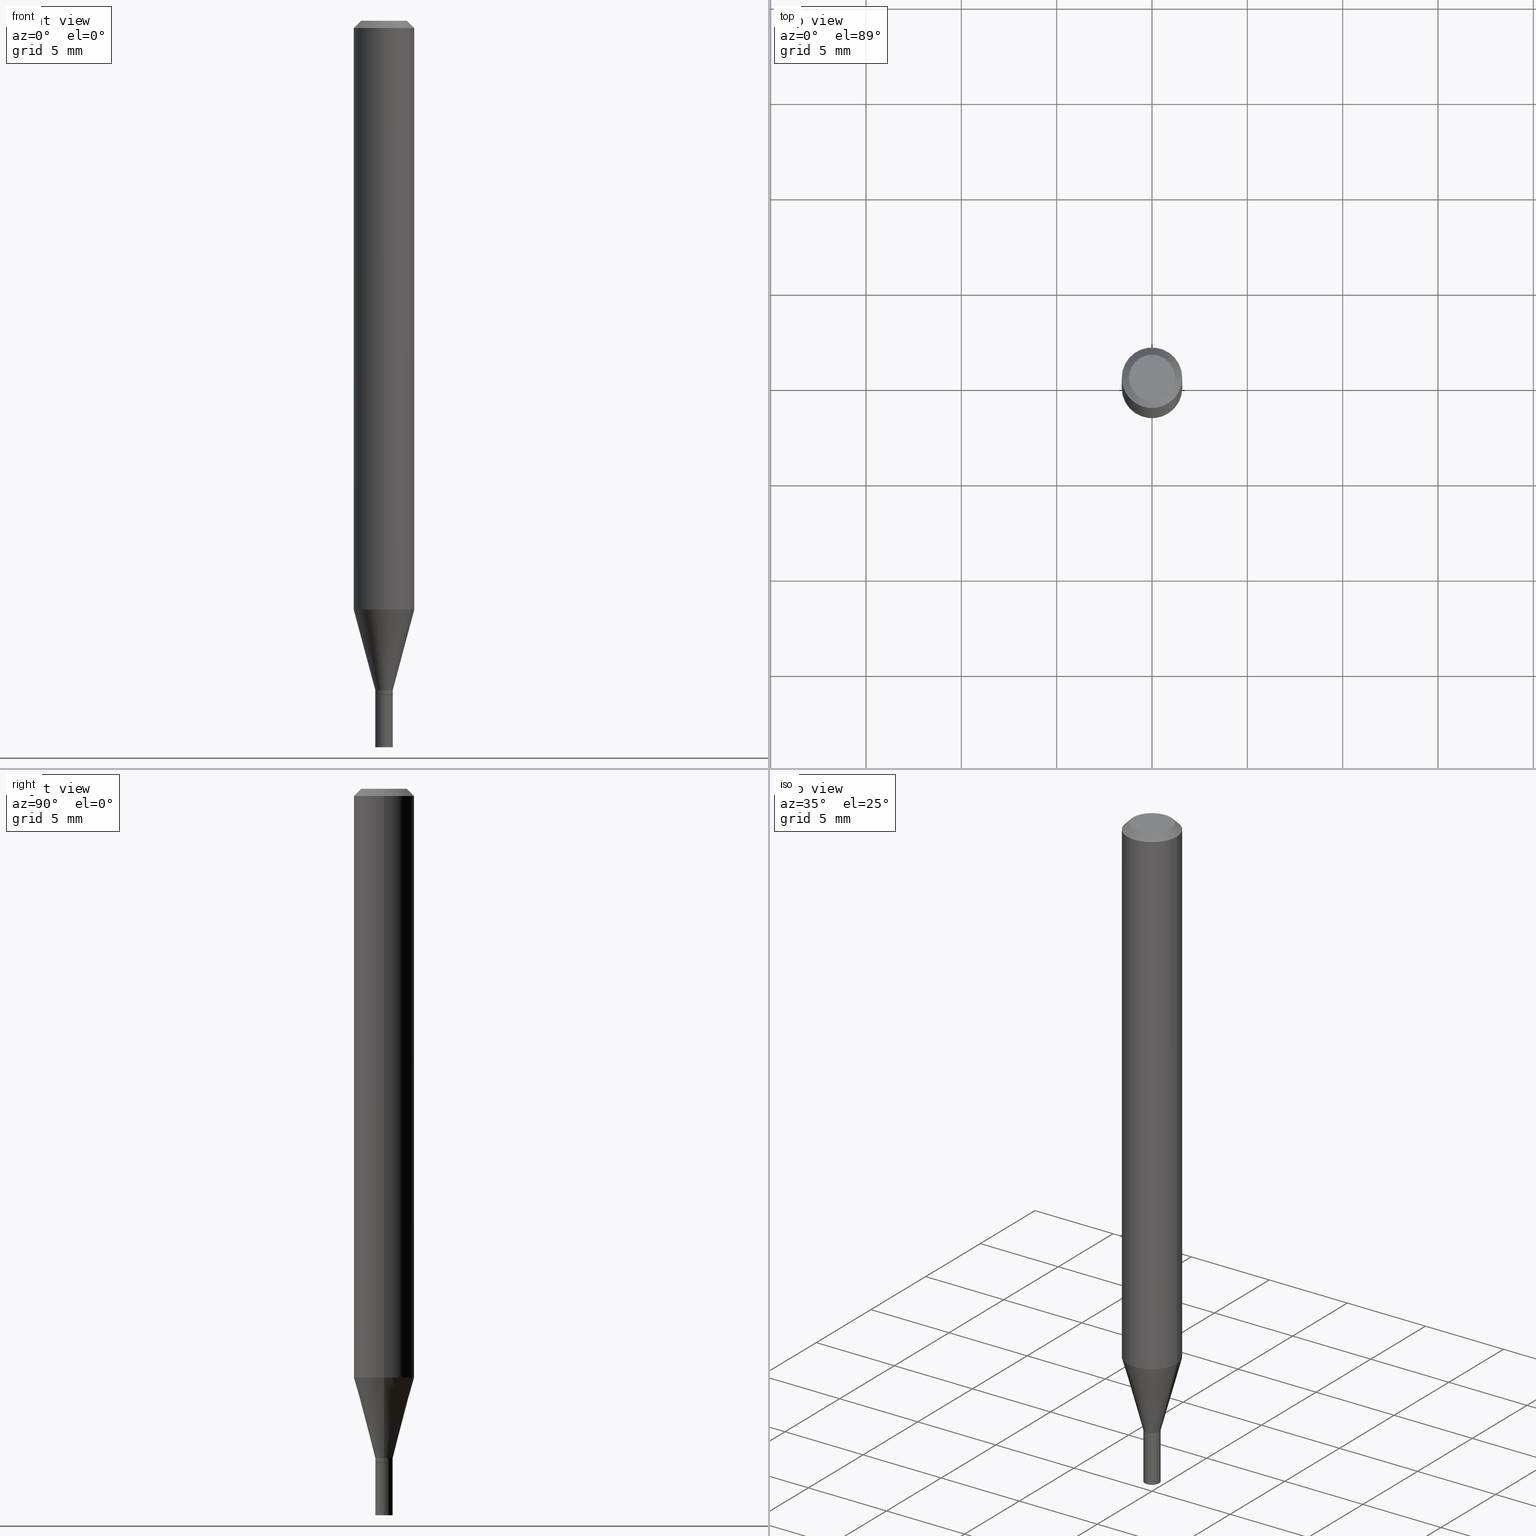
[diagram: canonical four-view strip — front | top / right | iso, engineering-drawing reading convention]
A machine part, canonical four-view strip (front | top / right | iso — engineering-drawing reading convention). The complete STEP part file that produces these views, byte-faithful:
ISO-10303-21;
HEADER;
FILE_DESCRIPTION (( 'STEP AP203' ),
    '1' );
FILE_NAME ('02343.STEP',
    '2024-03-18T20:10:57',
    ( '' ),
    ( '' ),
    'SwSTEP 2.0',
    'SolidWorks 2023',
    '' );
FILE_SCHEMA (( 'CONFIG_CONTROL_DESIGN' ));
ENDSEC;

DATA;
#1 = VECTOR ( 'NONE', #183, 39.37007874015748143 ) ;
#2 = CC_DESIGN_DATE_AND_TIME_ASSIGNMENT ( #293, #216, ( #354 ) ) ;
#3 = CIRCLE ( 'NONE', #403, 0.01799999999999992231 ) ;
#4 = APPLICATION_PROTOCOL_DEFINITION ( 'international standard', 'config_control_design', 1994, #36 ) ;
#5 = CARTESIAN_POINT ( 'NONE',  ( 1.278896122067429216E-44, -1.825924719719875646E-30, -5.229656247639779395E-16 ) ) ;
#6 = PERSON_AND_ORGANIZATION_ROLE ( 'classification_officer' ) ;
#7 = CARTESIAN_POINT ( 'NONE',  ( -0.01799999999999999864, -4.920784323530369756E-15, -1.392000000000000126 ) ) ;
#8 = PRODUCT ( '02343', '02343', '', ( #319 ) ) ;
#9 = CARTESIAN_POINT ( 'NONE',  ( 3.316907271900976096E-16, 0.04749999999999999362, -4.273281759770383169E-16 ) ) ;
#10 = FACE_OUTER_BOUND ( 'NONE', #165, .T. ) ;
#11 = CARTESIAN_POINT ( 'NONE',  ( 3.402869843806617422E-29, -4.858396283000238492E-15, -1.391500000000000181 ) ) ;
#12 = EDGE_CURVE ( 'NONE', #454, #226, #213, .T. ) ;
#13 = DIRECTION ( 'NONE',  ( 1.000000000000000000, -6.982962677686265922E-15, 4.876176775795935793E-29 ) ) ;
#14 = CIRCLE ( 'NONE', #212, 0.01749999999999999820 ) ;
#15 = CARTESIAN_POINT ( 'NONE',  ( 0.01799999999999991884, -1.256933281983522259E-16, 8.777118196432644280E-31 ) ) ;
#16 = AXIS2_PLACEMENT_3D ( 'NONE', #5, #244, #358 ) ;
#17 = DIRECTION ( 'NONE',  ( -2.445468806185136877E-29, 3.491481338843145188E-15, 1.000000000000000000 ) ) ;
#18 = EDGE_LOOP ( 'NONE', ( #235, #20, #67, #312 ) ) ;
#19 = CARTESIAN_POINT ( 'NONE',  ( -0.01799999999999991884, 1.278976924368174568E-16, -8.854083162458790652E-31 ) ) ;
#20 = ORIENTED_EDGE ( 'NONE', *, *, #190, .T. ) ;
#21 = DIRECTION ( 'NONE',  ( -2.445468806185136597E-29, 3.491481338843145583E-15, 1.000000000000000000 ) ) ;
#22 = ORIENTED_EDGE ( 'NONE', *, *, #378, .F. ) ;
#23 = VECTOR ( 'NONE', #17, 39.37007874015748143 ) ;
#24 = CARTESIAN_POINT ( 'NONE',  ( 0.000000000000000000, 0.000000000000000000, 0.000000000000000000 ) ) ;
#25 = VERTEX_POINT ( 'NONE', #104 ) ;
#26 = EDGE_CURVE ( 'NONE', #92, #158, #175, .T. ) ;
#27 = CALENDAR_DATE ( 2024, 18, 3 ) ;
#28 = EDGE_LOOP ( 'NONE', ( #282, #248 ) ) ;
#29 = DATE_TIME_ROLE ( 'creation_date' ) ;
#30 = CIRCLE ( 'NONE', #263, 0.01799999999999992231 ) ;
#31 = ORIENTED_EDGE ( 'NONE', *, *, #12, .T. ) ;
#32 = AXIS2_PLACEMENT_3D ( 'NONE', #462, #68, #140 ) ;
#33 = DIRECTION ( 'NONE',  ( -2.445468806185136877E-29, 3.491481338843145188E-15, 1.000000000000000000 ) ) ;
#34 = ADVANCED_FACE ( 'NONE', ( #426 ), #340, .T. ) ;
#35 = VERTEX_POINT ( 'NONE', #141 ) ;
#36 = APPLICATION_CONTEXT ( 'configuration controlled 3d designs of mechanical parts and assemblies' ) ;
#37 = FACE_OUTER_BOUND ( 'NONE', #250, .T. ) ;
#38 = FACE_OUTER_BOUND ( 'NONE', #308, .T. ) ;
#39 = CC_DESIGN_PERSON_AND_ORGANIZATION_ASSIGNMENT ( #257, #367, ( #236 ) ) ;
#40 = PERSON_AND_ORGANIZATION_ROLE ( 'design_owner' ) ;
#41 = DIRECTION ( 'NONE',  ( -2.445468806185136597E-29, 3.491481338843145583E-15, 1.000000000000000000 ) ) ;
#42 = AXIS2_PLACEMENT_3D ( 'NONE', #455, #273, #309 ) ;
#43 = ADVANCED_FACE ( 'NONE', ( #242 ), #424, .T. ) ;
#44 = AXIS2_PLACEMENT_3D ( 'NONE', #224, #265, #48 ) ;
#45 = ORIENTED_EDGE ( 'NONE', *, *, #173, .T. ) ;
#46 = DIRECTION ( 'NONE',  ( 2.438088387897960049E-29, -3.491481338843145188E-15, -1.000000000000000000 ) ) ;
#47 = PERSON_AND_ORGANIZATION ( #375, #99 ) ;
#48 = DIRECTION ( 'NONE',  ( 1.000000000000000000, -6.982962677686250144E-15, 0.000000000000000000 ) ) ;
#49 = PERSON_AND_ORGANIZATION_ROLE ( 'design_supplier' ) ;
#50 = CARTESIAN_POINT ( 'NONE',  ( 3.576687321579069994E-29, -5.368277968210015545E-15, -1.500000000000000222 ) ) ;
#51 = EDGE_CURVE ( 'NONE', #197, #454, #264, .T. ) ;
#52 = DIRECTION ( 'NONE',  ( -2.445468806185136877E-29, 3.491481338843145188E-15, 1.000000000000000000 ) ) ;
#53 = CC_DESIGN_DATE_AND_TIME_ASSIGNMENT ( #164, #29, ( #255 ) ) ;
#54 = CARTESIAN_POINT ( 'NONE',  ( 3.379637890147859239E-29, -4.825227210281227557E-15, -1.382000000000000117 ) ) ;
#55 = CIRCLE ( 'NONE', #317, 0.01799999999999999864 ) ;
#56 = DIRECTION ( 'NONE',  ( 0.7071067811865642261, -2.468850131082431399E-15, 0.7071067811865309194 ) ) ;
#57 = APPROVAL ( #428, 'UNSPECIFIED' ) ;
#58 = DIRECTION ( 'NONE',  ( 1.000000000000000000, -6.982962677686279332E-15, 0.000000000000000000 ) ) ;
#59 = CARTESIAN_POINT ( 'NONE',  ( -0.06250000000000001388, -3.801285834545430586E-15, -1.215923739063185183 ) ) ;
#60 = VERTEX_POINT ( 'NONE', #146 ) ;
#61 = CIRCLE ( 'NONE', #97, 0.01799999999999999864 ) ;
#62 = DIRECTION ( 'NONE',  ( -2.445468806185136597E-29, 3.491481338843145583E-15, 1.000000000000000000 ) ) ;
#63 = APPROVAL_PERSON_ORGANIZATION ( #288, #389, #109 ) ;
#64 = ORIENTED_EDGE ( 'NONE', *, *, #223, .T. ) ;
#65 = VECTOR ( 'NONE', #52, 39.37007874015748143 ) ;
#66 = DATE_AND_TIME ( #385, #228 ) ;
#67 = ORIENTED_EDGE ( 'NONE', *, *, #372, .T. ) ;
#68 = DIRECTION ( 'NONE',  ( -2.445468806185136597E-29, 3.491481338843145583E-15, 1.000000000000000000 ) ) ;
#69 = CARTESIAN_POINT ( 'NONE',  ( 3.668203209277705088E-31, -5.237222008264718399E-17, -0.01499999999999999944 ) ) ;
#70 = AXIS2_PLACEMENT_3D ( 'NONE', #266, #410, #315 ) ;
#71 = ORIENTED_EDGE ( 'NONE', *, *, #351, .T. ) ;
#72 = ORIENTED_EDGE ( 'NONE', *, *, #173, .F. ) ;
#73 = DIRECTION ( 'NONE',  ( 1.000000000000000000, -6.982962677686270655E-15, 0.000000000000000000 ) ) ;
#74 = ORIENTED_EDGE ( 'NONE', *, *, #420, .T. ) ;
#75 = ORIENTED_EDGE ( 'NONE', *, *, #289, .F. ) ;
#76 = APPROVAL ( #296, 'UNSPECIFIED' ) ;
#77 = AXIS2_PLACEMENT_3D ( 'NONE', #465, #205, #243 ) ;
#78 = CLOSED_SHELL ( 'NONE', ( #215, #163, #387, #414 ) ) ;
#79 = DIRECTION ( 'NONE',  ( 1.000000000000000000, -6.982962677686255667E-15, 0.000000000000000000 ) ) ;
#80 = FACE_OUTER_BOUND ( 'NONE', #276, .T. ) ;
#81 = ADVANCED_FACE ( 'NONE', ( #38 ), #290, .T. ) ;
#82 = CARTESIAN_POINT ( 'NONE',  ( -0.01799999999999991884, -4.249307676194920787E-15, -1.382000000000000117 ) ) ;
#83 = AXIS2_PLACEMENT_3D ( 'NONE', #150, #295, #439 ) ;
#84 = EDGE_CURVE ( 'NONE', #342, #25, #121, .T. ) ;
#85 = DIRECTION ( 'NONE',  ( -1.000000000000000000, 6.982962677686266711E-15, 0.000000000000000000 ) ) ;
#86 = DIRECTION ( 'NONE',  ( 1.000000000000000000, -6.982962677686256455E-15, 0.000000000000000000 ) ) ;
#87 = MANIFOLD_SOLID_BREP ( 'Body-Move/Copy2[1]', #78 ) ;
#88 = CARTESIAN_POINT ( 'NONE',  ( 0.000000000000000000, 0.000000000000000000, 0.000000000000000000 ) ) ;
#89 = ORIENTED_EDGE ( 'NONE', *, *, #332, .F. ) ;
#90 =( GEOMETRIC_REPRESENTATION_CONTEXT ( 3 ) GLOBAL_UNCERTAINTY_ASSIGNED_CONTEXT ( ( #201 ) ) GLOBAL_UNIT_ASSIGNED_CONTEXT ( ( #283, #106, #174 ) ) REPRESENTATION_CONTEXT ( 'NONE', 'WORKASPACE' ) );
#91 = DIRECTION ( 'NONE',  ( 1.000000000000000000, -6.982962677686266711E-15, 0.000000000000000000 ) ) ;
#92 = VERTEX_POINT ( 'NONE', #297 ) ;
#93 = CARTESIAN_POINT ( 'NONE',  ( 3.404092578209710223E-29, -4.860142023669658418E-15, -1.392000000000000126 ) ) ;
#94 = ORIENTED_EDGE ( 'NONE', *, *, #370, .T. ) ;
#95 = CARTESIAN_POINT ( 'NONE',  ( -0.01799999999999991884, -4.697329517844410199E-15, -1.382000000000000117 ) ) ;
#96 = ORIENTED_EDGE ( 'NONE', *, *, #84, .F. ) ;
#97 = AXIS2_PLACEMENT_3D ( 'NONE', #115, #259, #400 ) ;
#98 = DIRECTION ( 'NONE',  ( 1.000000000000000000, -6.982962677686266711E-15, 4.876176775795935232E-29 ) ) ;
#99 = ORGANIZATION ( 'UNSPECIFIED', 'UNSPECIFIED', '' ) ;
#100 = ORIENTED_EDGE ( 'NONE', *, *, #437, .F. ) ;
#101 = AXIS2_PLACEMENT_3D ( 'NONE', #269, #126, #91 ) ;
#102 = CARTESIAN_POINT ( 'NONE',  ( 3.404092578209710223E-29, -4.860142023669658418E-15, -1.392000000000000126 ) ) ;
#103 = CARTESIAN_POINT ( 'NONE',  ( 2.973503574579014958E-29, -4.245375044395493202E-15, -1.215923739063185183 ) ) ;
#104 = CARTESIAN_POINT ( 'NONE',  ( 0.06250000000000001388, -4.681810211750884871E-15, -1.215923739063185183 ) ) ;
#105 = CC_DESIGN_PERSON_AND_ORGANIZATION_ASSIGNMENT ( #281, #40, ( #8 ) ) ;
#106 =( NAMED_UNIT ( * ) PLANE_ANGLE_UNIT ( ) SI_UNIT ( $, .RADIAN. ) );
#107 = ORIENTED_EDGE ( 'NONE', *, *, #129, .T. ) ;
#108 = ORIENTED_EDGE ( 'NONE', *, *, #409, .F. ) ;
#109 = APPROVAL_ROLE ( '' ) ;
#110 = EDGE_CURVE ( 'NONE', #60, #25, #292, .T. ) ;
#111 = DIRECTION ( 'NONE',  ( -2.445468806185136597E-29, 3.491481338843145583E-15, 1.000000000000000000 ) ) ;
#112 = DATE_AND_TIME ( #444, #127 ) ;
#113 = LINE ( 'NONE', #408, #304 ) ;
#114 = VECTOR ( 'NONE', #56, 39.37007874015748143 ) ;
#115 = CARTESIAN_POINT ( 'NONE',  ( 3.668203209277704895E-29, -5.237222008264718177E-15, -1.500000000000000222 ) ) ;
#116 = ADVANCED_FACE ( 'NONE', ( #80 ), #237, .T. ) ;
#117 = PERSON_AND_ORGANIZATION ( #375, #99 ) ;
#118 = CARTESIAN_POINT ( 'NONE',  ( -0.01799999999999999864, 1.278976924368180238E-16, -8.854083162458829188E-31 ) ) ;
#119 = CARTESIAN_POINT ( 'NONE',  ( 0.04749999999999999362, -4.035134999187587991E-16, -5.229656247639753758E-16 ) ) ;
#120 = CIRCLE ( 'NONE', #361, 0.04749999999999999362 ) ;
#121 = CIRCLE ( 'NONE', #166, 0.06250000000000000000 ) ;
#122 = EDGE_CURVE ( 'NONE', #342, #226, #335, .T. ) ;
#123 = DIRECTION ( 'NONE',  ( -2.445468806185136597E-29, 3.491481338843145583E-15, 1.000000000000000000 ) ) ;
#124 = PLANE ( 'NONE',  #70 ) ;
#125 = VERTEX_POINT ( 'NONE', #82 ) ;
#126 = DIRECTION ( 'NONE',  ( -2.445468806185136597E-29, 3.491481338843145583E-15, 1.000000000000000000 ) ) ;
#127 = LOCAL_TIME ( 16, 10, 57.00000000000000000, #252 ) ;
#128 = CARTESIAN_POINT ( 'NONE',  ( 0.06250000000000000000, -4.888073874380388472E-16, -0.01499999999999999944 ) ) ;
#129 = EDGE_CURVE ( 'NONE', #413, #322, #421, .T. ) ;
#130 = DIRECTION ( 'NONE',  ( -2.445468806185136877E-29, 3.491481338843145188E-15, 1.000000000000000000 ) ) ;
#131 = ORIENTED_EDGE ( 'NONE', *, *, #346, .T. ) ;
#132 = PLANE ( 'NONE',  #145 ) ;
#133 = ORIENTED_EDGE ( 'NONE', *, *, #271, .T. ) ;
#134 = AXIS2_PLACEMENT_3D ( 'NONE', #50, #178, #13 ) ;
#135 = CARTESIAN_POINT ( 'NONE',  ( 2.973503574579014958E-29, -4.245375044395493202E-15, -1.215923739063185183 ) ) ;
#136 = EDGE_CURVE ( 'NONE', #322, #413, #14, .T. ) ;
#137 = DIRECTION ( 'NONE',  ( 1.000000000000000000, -6.982962677686279332E-15, 0.000000000000000000 ) ) ;
#138 = PERSON_AND_ORGANIZATION ( #375, #99 ) ;
#139 = ORIENTED_EDGE ( 'NONE', *, *, #136, .F. ) ;
#140 = DIRECTION ( 'NONE',  ( 1.000000000000000000, -6.982962677686266711E-15, 4.876176775795935793E-29 ) ) ;
#141 = CARTESIAN_POINT ( 'NONE',  ( 0.01799999999999992231, -4.984089611198589115E-15, -1.391500000000000181 ) ) ;
#142 = DIRECTION ( 'NONE',  ( -2.445468806185136597E-29, 3.491481338843145583E-15, 1.000000000000000000 ) ) ;
#143 = AXIS2_PLACEMENT_3D ( 'NONE', #434, #111, #396 ) ;
#144 = ORIENTED_EDGE ( 'NONE', *, *, #437, .T. ) ;
#145 = AXIS2_PLACEMENT_3D ( 'NONE', #93, #344, #272 ) ;
#146 = CARTESIAN_POINT ( 'NONE',  ( 0.01799999999999991884, -4.950920538479579759E-15, -1.382000000000000117 ) ) ;
#147 = ADVANCED_BREP_SHAPE_REPRESENTATION ( '02343', ( #87, #240, #77 ), #90 ) ;
#148 = DIRECTION ( 'NONE',  ( -1.000000000000000000, 6.982962677686265922E-15, -4.876176775795935793E-29 ) ) ;
#149 = COORDINATED_UNIVERSAL_TIME_OFFSET ( 5, 0, .BEHIND. ) ;
#150 = CARTESIAN_POINT ( 'NONE',  ( 3.379637890147859239E-29, -4.825227210281227557E-15, -1.382000000000000117 ) ) ;
#151 = LOCAL_TIME ( 16, 10, 57.00000000000000000, #149 ) ;
#152 = FACE_OUTER_BOUND ( 'NONE', #160, .T. ) ;
#153 = CARTESIAN_POINT ( 'NONE',  ( -0.06250000000000000000, 4.440892098500626162E-16, -3.074334431409316114E-30 ) ) ;
#154 = FACE_OUTER_BOUND ( 'NONE', #395, .T. ) ;
#155 = AXIS2_PLACEMENT_3D ( 'NONE', #69, #176, #326 ) ;
#156 = DIRECTION ( 'NONE',  ( 1.000000000000000000, -6.982962677686256455E-15, 0.000000000000000000 ) ) ;
#157 = DIRECTION ( 'NONE',  ( 1.000000000000000000, -6.982962677686256455E-15, 0.000000000000000000 ) ) ;
#158 = VERTEX_POINT ( 'NONE', #7 ) ;
#159 = CYLINDRICAL_SURFACE ( 'NONE', #42, 0.01799999999999991884 ) ;
#160 = EDGE_LOOP ( 'NONE', ( #377, #75 ) ) ;
#161 = CYLINDRICAL_SURFACE ( 'NONE', #405, 0.01799999999999999864 ) ;
#162 = CARTESIAN_POINT ( 'NONE',  ( 3.668203209277705088E-31, -5.237222008264718399E-17, -0.01499999999999999944 ) ) ;
#163 = ADVANCED_FACE ( 'NONE', ( #152 ), #368, .F. ) ;
#164 = DATE_AND_TIME ( #27, #187 ) ;
#165 = EDGE_LOOP ( 'NONE', ( #144, #360, #193, #432 ) ) ;
#166 = AXIS2_PLACEMENT_3D ( 'NONE', #103, #204, #369 ) ;
#167 = CARTESIAN_POINT ( 'NONE',  ( 0.06250000000000000000, -4.364351673553916694E-16, 3.047610484872459871E-30 ) ) ;
#168 = ORIENTED_EDGE ( 'NONE', *, *, #129, .F. ) ;
#169 = DIRECTION ( 'NONE',  ( 1.000000000000000000, -6.982962677686250144E-15, 0.000000000000000000 ) ) ;
#170 = ORIENTED_EDGE ( 'NONE', *, *, #245, .T. ) ;
#171 = APPLICATION_CONTEXT ( 'configuration controlled 3d designs of mechanical parts and assemblies' ) ;
#172 = ORIENTED_EDGE ( 'NONE', *, *, #122, .F. ) ;
#173 = EDGE_CURVE ( 'NONE', #35, #452, #3, .T. ) ;
#174 =( NAMED_UNIT ( * ) SI_UNIT ( $, .STERADIAN. ) SOLID_ANGLE_UNIT ( ) );
#175 = CIRCLE ( 'NONE', #447, 0.01799999999999999864 ) ;
#176 = DIRECTION ( 'NONE',  ( 2.445468806185136597E-29, -3.491481338843145583E-15, -1.000000000000000000 ) ) ;
#177 = AXIS2_PLACEMENT_3D ( 'NONE', #88, #62, #412 ) ;
#178 = DIRECTION ( 'NONE',  ( -2.438088387897960049E-29, 3.491481338843145188E-15, 1.000000000000000000 ) ) ;
#179 = EDGE_CURVE ( 'NONE', #466, #158, #443, .T. ) ;
#180 = CARTESIAN_POINT ( 'NONE',  ( -0.06250000000000000000, -1.704784422389007524E-15, -0.01499999999999999944 ) ) ;
#181 = DIRECTION ( 'NONE',  ( 2.445468806185136597E-29, -3.491481338843145583E-15, -1.000000000000000000 ) ) ;
#182 = CARTESIAN_POINT ( 'NONE',  ( 3.668203209277705088E-31, -5.237222008264718399E-17, -0.01499999999999999944 ) ) ;
#183 = DIRECTION ( 'NONE',  ( -2.445468806185136877E-29, 3.491481338843145188E-15, 1.000000000000000000 ) ) ;
#184 = ADVANCED_FACE ( 'NONE', ( #298 ), #194, .T. ) ;
#185 = DIRECTION ( 'NONE',  ( -2.445468806185136597E-29, 3.491481338843145583E-15, 1.000000000000000000 ) ) ;
#186 = AXIS2_PLACEMENT_3D ( 'NONE', #234, #337, #58 ) ;
#187 = LOCAL_TIME ( 16, 10, 57.00000000000000000, #460 ) ;
#188 = FACE_OUTER_BOUND ( 'NONE', #310, .T. ) ;
#189 = EDGE_LOOP ( 'NONE', ( #22, #353, #71, #461 ) ) ;
#190 = EDGE_CURVE ( 'NONE', #197, #362, #113, .T. ) ;
#191 = DIRECTION ( 'NONE',  ( 1.000000000000000000, -6.982962677686279332E-15, 0.000000000000000000 ) ) ;
#192 = FACE_OUTER_BOUND ( 'NONE', #391, .T. ) ;
#193 = ORIENTED_EDGE ( 'NONE', *, *, #372, .F. ) ;
#194 = CONICAL_SURFACE ( 'NONE', #302, 0.06250000000000000000, 0.7853981633974658205 ) ;
#195 = AXIS2_PLACEMENT_3D ( 'NONE', #415, #21, #157 ) ;
#196 = DIRECTION ( 'NONE',  ( 1.000000000000000000, -6.982962677686266711E-15, 0.000000000000000000 ) ) ;
#197 = VERTEX_POINT ( 'NONE', #119 ) ;
#198 = ADVANCED_FACE ( 'NONE', ( #406 ), #366, .F. ) ;
#199 = APPROVAL_DATE_TIME ( #66, #389 ) ;
#200 = ORIENTED_EDGE ( 'NONE', *, *, #346, .F. ) ;
#201 = UNCERTAINTY_MEASURE_WITH_UNIT (LENGTH_MEASURE( 1.000000000000000082E-05 ), #283, 'distance_accuracy_value', 'NONE');
#202 = CC_DESIGN_PERSON_AND_ORGANIZATION_ASSIGNMENT ( #435, #6, ( #354 ) ) ;
#203 = COORDINATED_UNIVERSAL_TIME_OFFSET ( 5, 0, .BEHIND. ) ;
#204 = DIRECTION ( 'NONE',  ( -2.445468806185136597E-29, 3.491481338843145583E-15, 1.000000000000000000 ) ) ;
#205 = DIRECTION ( 'NONE',  ( 0.000000000000000000, 0.000000000000000000, 1.000000000000000000 ) ) ;
#206 = EDGE_LOOP ( 'NONE', ( #239, #284, #31, #233 ) ) ;
#207 = CARTESIAN_POINT ( 'NONE',  ( -0.01799999999999999864, -4.920784323530369756E-15, -1.500000000000000222 ) ) ;
#208 = EDGE_CURVE ( 'NONE', #314, #92, #222, .T. ) ;
#209 = CARTESIAN_POINT ( 'NONE',  ( 3.404092578209710223E-29, -4.860142023669658418E-15, -1.392000000000000126 ) ) ;
#210 = CYLINDRICAL_SURFACE ( 'NONE', #32, 0.06250000000000000000 ) ;
#211 = ORIENTED_EDGE ( 'NONE', *, *, #305, .F. ) ;
#212 = AXIS2_PLACEMENT_3D ( 'NONE', #260, #262, #217 ) ;
#213 = LINE ( 'NONE', #429, #325 ) ;
#214 = AXIS2_PLACEMENT_3D ( 'NONE', #247, #459, #280 ) ;
#215 = ADVANCED_FACE ( 'NONE', ( #154 ), #301, .T. ) ;
#216 = DATE_TIME_ROLE ( 'classification_date' ) ;
#217 = DIRECTION ( 'NONE',  ( 1.000000000000000000, -6.982962677686250144E-15, 0.000000000000000000 ) ) ;
#218 = DIRECTION ( 'NONE',  ( 0.2588190451025211836, 1.565188264969622559E-15, 0.9659258262890679791 ) ) ;
#219 = APPROVAL_DATE_TIME ( #112, #57 ) ;
#220 = DIRECTION ( 'NONE',  ( -2.445468806185136597E-29, 3.491481338843145583E-15, 1.000000000000000000 ) ) ;
#221 = LOCAL_TIME ( 16, 10, 57.00000000000000000, #300 ) ;
#222 = LINE ( 'NONE', #331, #1 ) ;
#223 = EDGE_CURVE ( 'NONE', #452, #35, #30, .T. ) ;
#224 = CARTESIAN_POINT ( 'NONE',  ( 3.404092578209710223E-29, -4.860142023669658418E-15, -1.392000000000000126 ) ) ;
#225 = CYLINDRICAL_SURFACE ( 'NONE', #177, 0.06250000000000000000 ) ;
#226 = VERTEX_POINT ( 'NONE', #180 ) ;
#227 = AXIS2_PLACEMENT_3D ( 'NONE', #9, #46, #148 ) ;
#228 = LOCAL_TIME ( 16, 10, 57.00000000000000000, #203 ) ;
#229 = CARTESIAN_POINT ( 'NONE',  ( 3.404092578209710223E-29, -4.860142023669658418E-15, -1.392000000000000126 ) ) ;
#230 = ORIENTED_EDGE ( 'NONE', *, *, #336, .F. ) ;
#231 = ADVANCED_FACE ( 'NONE', ( #329 ), #324, .T. ) ;
#232 = CARTESIAN_POINT ( 'NONE',  ( 0.01749999999999999820, -4.982343870529167612E-15, -1.392000000000000126 ) ) ;
#233 = ORIENTED_EDGE ( 'NONE', *, *, #332, .T. ) ;
#234 = CARTESIAN_POINT ( 'NONE',  ( 3.668203209277704895E-29, -5.237222008264718177E-15, -1.500000000000000222 ) ) ;
#235 = ORIENTED_EDGE ( 'NONE', *, *, #51, .F. ) ;
#236 = PRODUCT_DEFINITION_FORMATION_WITH_SPECIFIED_SOURCE ( 'ANY', '', #8, .NOT_KNOWN. ) ;
#237 = CONICAL_SURFACE ( 'NONE', #382, 0.01799999999999991884, 0.2617993877991499074 ) ;
#238 = FACE_OUTER_BOUND ( 'NONE', #274, .T. ) ;
#239 = ORIENTED_EDGE ( 'NONE', *, *, #190, .F. ) ;
#240 = MANIFOLD_SOLID_BREP ( 'Body-Move/Copy2[2]', #397 ) ;
#241 = DIRECTION ( 'NONE',  ( -2.445468806185136597E-29, 3.491481338843145583E-15, 1.000000000000000000 ) ) ;
#242 = FACE_OUTER_BOUND ( 'NONE', #189, .T. ) ;
#243 = DIRECTION ( 'NONE',  ( 1.000000000000000000, 0.000000000000000000, 0.000000000000000000 ) ) ;
#244 = DIRECTION ( 'NONE',  ( -2.445468806185136597E-29, 3.491481338843145583E-15, 1.000000000000000000 ) ) ;
#245 = EDGE_CURVE ( 'NONE', #314, #466, #61, .T. ) ;
#246 = AXIS2_PLACEMENT_3D ( 'NONE', #135, #241, #73 ) ;
#247 = CARTESIAN_POINT ( 'NONE',  ( 3.404092578209710223E-29, -4.860142023669658418E-15, -1.392000000000000126 ) ) ;
#248 = ORIENTED_EDGE ( 'NONE', *, *, #336, .T. ) ;
#249 = DATE_AND_TIME ( #401, #221 ) ;
#250 = EDGE_LOOP ( 'NONE', ( #172, #383, #74, #89 ) ) ;
#251 = ADVANCED_FACE ( 'NONE', ( #10 ), #225, .T. ) ;
#252 = COORDINATED_UNIVERSAL_TIME_OFFSET ( 5, 0, .BEHIND. ) ;
#253 = CIRCLE ( 'NONE', #101, 0.06250000000000000000 ) ;
#254 = CARTESIAN_POINT ( 'NONE',  ( 3.402869843806617422E-29, -4.858396283000238492E-15, -1.391500000000000181 ) ) ;
#255 = PRODUCT_DEFINITION ( 'UNKNOWN', '', #236, #457 ) ;
#256 = DIMENSIONAL_EXPONENTS ( 1.000000000000000000, 0.000000000000000000, 0.000000000000000000, 0.000000000000000000, 0.000000000000000000, 0.000000000000000000, 0.000000000000000000 ) ;
#257 = PERSON_AND_ORGANIZATION ( #375, #99 ) ;
#258 = PRODUCT_DEFINITION_SHAPE ( 'NONE', 'NONE',  #255 ) ;
#259 = DIRECTION ( 'NONE',  ( -2.445468806185136597E-29, 3.491481338843145583E-15, 1.000000000000000000 ) ) ;
#260 = CARTESIAN_POINT ( 'NONE',  ( 3.404092578209710223E-29, -4.860142023669658418E-15, -1.392000000000000126 ) ) ;
#261 = ADVANCED_FACE ( 'NONE', ( #192 ), #159, .T. ) ;
#262 = DIRECTION ( 'NONE',  ( -2.445468806185136597E-29, 3.491481338843145583E-15, 1.000000000000000000 ) ) ;
#263 = AXIS2_PLACEMENT_3D ( 'NONE', #254, #398, #79 ) ;
#264 = CIRCLE ( 'NONE', #16, 0.04749999999999999362 ) ;
#265 = DIRECTION ( 'NONE',  ( -2.445468806185136597E-29, 3.491481338843145583E-15, 1.000000000000000000 ) ) ;
#266 = CARTESIAN_POINT ( 'NONE',  ( 1.256933281983868125E-16, 0.01799999999999513794, -1.392000000000000126 ) ) ;
#267 = ORIENTED_EDGE ( 'NONE', *, *, #268, .T. ) ;
#268 = EDGE_CURVE ( 'NONE', #35, #60, #341, .T. ) ;
#269 = CARTESIAN_POINT ( 'NONE',  ( 3.668203209277705088E-31, -5.237222008264718399E-17, -0.01499999999999999944 ) ) ;
#270 = ORIENTED_EDGE ( 'NONE', *, *, #351, .F. ) ;
#271 = EDGE_CURVE ( 'NONE', #454, #197, #120, .T. ) ;
#272 = DIRECTION ( 'NONE',  ( 1.000000000000000000, -6.982962677686265922E-15, 4.876176775795935793E-29 ) ) ;
#273 = DIRECTION ( 'NONE',  ( -2.445468806185136597E-29, 3.491481338843145583E-15, 1.000000000000000000 ) ) ;
#274 = EDGE_LOOP ( 'NONE', ( #357, #345, #449, #230 ) ) ;
#275 = DIRECTION ( 'NONE',  ( -2.445468806185136597E-29, 3.491481338843145583E-15, 1.000000000000000000 ) ) ;
#276 = EDGE_LOOP ( 'NONE', ( #211, #94, #388, #96 ) ) ;
#277 = AXIS2_PLACEMENT_3D ( 'NONE', #446, #123, #436 ) ;
#278 = CIRCLE ( 'NONE', #246, 0.06250000000000000000 ) ;
#279 = PERSON_AND_ORGANIZATION_ROLE ( 'creator' ) ;
#280 = DIRECTION ( 'NONE',  ( 1.000000000000000000, -6.982962677686250144E-15, 0.000000000000000000 ) ) ;
#281 = PERSON_AND_ORGANIZATION ( #375, #99 ) ;
#282 = ORIENTED_EDGE ( 'NONE', *, *, #26, .T. ) ;
#283 =( CONVERSION_BASED_UNIT ( 'INCH', #359 ) LENGTH_UNIT ( ) NAMED_UNIT ( #256 ) );
#284 = ORIENTED_EDGE ( 'NONE', *, *, #271, .F. ) ;
#285 = CONICAL_SURFACE ( 'NONE', #374, 0.01749999999999999820, 0.7853981633974718157 ) ;
#286 = VECTOR ( 'NONE', #130, 39.37007874015748143 ) ;
#287 = ORIENTED_EDGE ( 'NONE', *, *, #26, .F. ) ;
#288 = PERSON_AND_ORGANIZATION ( #375, #99 ) ;
#289 = EDGE_CURVE ( 'NONE', #466, #314, #338, .T. ) ;
#290 = CYLINDRICAL_SURFACE ( 'NONE', #143, 0.01799999999999991884 ) ;
#291 = APPROVAL_DATE_TIME ( #249, #76 ) ;
#292 = LINE ( 'NONE', #371, #348 ) ;
#293 = DATE_AND_TIME ( #364, #151 ) ;
#294 = AXIS2_PLACEMENT_3D ( 'NONE', #54, #185, #156 ) ;
#295 = DIRECTION ( 'NONE',  ( -2.445468806185136597E-29, 3.491481338843145583E-15, 1.000000000000000000 ) ) ;
#296 = APPROVAL_STATUS ( 'not_yet_approved' ) ;
#297 = CARTESIAN_POINT ( 'NONE',  ( 0.01799999999999999864, -4.985835351868011408E-15, -1.392000000000000126 ) ) ;
#298 = FACE_OUTER_BOUND ( 'NONE', #206, .T. ) ;
#299 = CC_DESIGN_PERSON_AND_ORGANIZATION_ASSIGNMENT ( #117, #49, ( #236 ) ) ;
#300 = COORDINATED_UNIVERSAL_TIME_OFFSET ( 5, 0, .BEHIND. ) ;
#301 = CYLINDRICAL_SURFACE ( 'NONE', #277, 0.01799999999999999864 ) ;
#302 = AXIS2_PLACEMENT_3D ( 'NONE', #182, #181, #85 ) ;
#303 = CIRCLE ( 'NONE', #347, 0.06250000000000000000 ) ;
#304 = VECTOR ( 'NONE', #327, 39.37007874015748143 ) ;
#305 = EDGE_CURVE ( 'NONE', #125, #342, #417, .T. ) ;
#306 = CARTESIAN_POINT ( 'NONE',  ( 0.01749999999999999820, -4.982343870529167612E-15, -1.392000000000000126 ) ) ;
#307 = LINE ( 'NONE', #343, #431 ) ;
#308 = EDGE_LOOP ( 'NONE', ( #45, #131, #108, #418 ) ) ;
#309 = DIRECTION ( 'NONE',  ( 1.000000000000000000, -6.982962677686265922E-15, 4.876176775795935232E-29 ) ) ;
#310 = EDGE_LOOP ( 'NONE', ( #168, #139 ) ) ;
#311 = DIRECTION ( 'NONE',  ( -2.445468806185136597E-29, 3.491481338843145583E-15, 1.000000000000000000 ) ) ;
#312 = ORIENTED_EDGE ( 'NONE', *, *, #12, .F. ) ;
#313 = DIRECTION ( 'NONE',  ( 1.000000000000000000, -6.982962677686267499E-15, 4.852736867747366768E-29 ) ) ;
#314 = VERTEX_POINT ( 'NONE', #379 ) ;
#315 = DIRECTION ( 'NONE',  ( -1.000000000000000000, 6.982962677686265922E-15, -4.876176775795935793E-29 ) ) ;
#316 = DIRECTION ( 'NONE',  ( -0.7071067811865598962, 2.468850131082386434E-15, -0.7071067811865351382 ) ) ;
#317 = AXIS2_PLACEMENT_3D ( 'NONE', #229, #376, #191 ) ;
#318 = CC_DESIGN_APPROVAL ( #57, ( #236 ) ) ;
#319 = MECHANICAL_CONTEXT ( 'NONE', #171, 'mechanical' ) ;
#320 = EDGE_LOOP ( 'NONE', ( #107, #393, #72, #270 ) ) ;
#321 = CARTESIAN_POINT ( 'NONE',  ( -0.04749999999999999362, 3.578768372314202124E-16, -5.229656247639803061E-16 ) ) ;
#322 = VERTEX_POINT ( 'NONE', #419 ) ;
#323 = EDGE_LOOP ( 'NONE', ( #416, #456, #100, #430 ) ) ;
#324 = CONICAL_SURFACE ( 'NONE', #83, 0.01799999999999991884, 0.2617993877991499074 ) ;
#325 = VECTOR ( 'NONE', #316, 39.37007874015748143 ) ;
#326 = DIRECTION ( 'NONE',  ( -1.000000000000000000, 6.982962677686266711E-15, 0.000000000000000000 ) ) ;
#327 = DIRECTION ( 'NONE',  ( 0.7071067811865598962, -7.319954787623298644E-15, -0.7071067811865351382 ) ) ;
#328 = SHAPE_DEFINITION_REPRESENTATION ( #258, #147 ) ;
#329 = FACE_OUTER_BOUND ( 'NONE', #323, .T. ) ;
#330 = CC_DESIGN_APPROVAL ( #389, ( #255 ) ) ;
#331 = CARTESIAN_POINT ( 'NONE',  ( 0.01799999999999999864, -1.256933281983527929E-16, 8.777118196432682816E-31 ) ) ;
#332 = EDGE_CURVE ( 'NONE', #226, #362, #253, .T. ) ;
#333 = DIRECTION ( 'NONE',  ( -2.445468806185136597E-29, 3.491481338843145583E-15, 1.000000000000000000 ) ) ;
#334 = PRODUCT_RELATED_PRODUCT_CATEGORY ( 'detail', '', ( #8 ) ) ;
#335 = LINE ( 'NONE', #153, #438 ) ;
#336 = EDGE_CURVE ( 'NONE', #158, #92, #55, .T. ) ;
#337 = DIRECTION ( 'NONE',  ( -2.445468806185136597E-29, 3.491481338843145583E-15, 1.000000000000000000 ) ) ;
#338 = CIRCLE ( 'NONE', #186, 0.01799999999999999864 ) ;
#339 = APPROVAL_PERSON_ORGANIZATION ( #138, #57, #404 ) ;
#340 = CONICAL_SURFACE ( 'NONE', #155, 0.06250000000000000000, 0.7853981633974658205 ) ;
#341 = LINE ( 'NONE', #15, #23 ) ;
#342 = VERTEX_POINT ( 'NONE', #59 ) ;
#343 = CARTESIAN_POINT ( 'NONE',  ( -0.01749999999999999820, -4.735797044911641169E-15, -1.392000000000000126 ) ) ;
#344 = DIRECTION ( 'NONE',  ( -2.438088387897960049E-29, 3.491481338843145188E-15, 1.000000000000000000 ) ) ;
#345 = ORIENTED_EDGE ( 'NONE', *, *, #289, .T. ) ;
#346 = EDGE_CURVE ( 'NONE', #452, #125, #381, .T. ) ;
#347 = AXIS2_PLACEMENT_3D ( 'NONE', #162, #275, #196 ) ;
#348 = VECTOR ( 'NONE', #218, 39.37007874015748854 ) ;
#349 = DIRECTION ( 'NONE',  ( -0.7071067811865642261, 7.493145998870414114E-15, 0.7071067811865309194 ) ) ;
#350 = PERSON_AND_ORGANIZATION ( #375, #99 ) ;
#351 = EDGE_CURVE ( 'NONE', #413, #35, #453, .T. ) ;
#352 = APPLICATION_PROTOCOL_DEFINITION ( 'international standard', 'config_control_design', 1994, #171 ) ;
#353 = ORIENTED_EDGE ( 'NONE', *, *, #136, .T. ) ;
#354 = SECURITY_CLASSIFICATION ( '', '', #399 ) ;
#355 = VECTOR ( 'NONE', #33, 39.37007874015748143 ) ;
#356 = FACE_OUTER_BOUND ( 'NONE', #320, .T. ) ;
#357 = ORIENTED_EDGE ( 'NONE', *, *, #179, .F. ) ;
#358 = DIRECTION ( 'NONE',  ( 1.000000000000000000, -6.982962677686267499E-15, 4.852736867747366768E-29 ) ) ;
#359 = LENGTH_MEASURE_WITH_UNIT ( LENGTH_MEASURE( 0.02539999999999999897 ), #390 );
#360 = ORIENTED_EDGE ( 'NONE', *, *, #122, .T. ) ;
#361 = AXIS2_PLACEMENT_3D ( 'NONE', #373, #311, #313 ) ;
#362 = VERTEX_POINT ( 'NONE', #128 ) ;
#363 = DIRECTION ( 'NONE',  ( 1.000000000000000000, -6.982962677686255667E-15, 0.000000000000000000 ) ) ;
#364 = CALENDAR_DATE ( 2024, 18, 3 ) ;
#365 = ADVANCED_FACE ( 'NONE', ( #188 ), #132, .F. ) ;
#366 = PLANE ( 'NONE',  #227 ) ;
#367 = PERSON_AND_ORGANIZATION_ROLE ( 'creator' ) ;
#368 = PLANE ( 'NONE',  #134 ) ;
#369 = DIRECTION ( 'NONE',  ( 1.000000000000000000, -6.982962677686270655E-15, 0.000000000000000000 ) ) ;
#370 = EDGE_CURVE ( 'NONE', #125, #60, #407, .T. ) ;
#371 = CARTESIAN_POINT ( 'NONE',  ( 0.01799999999999991884, -4.950920538479579759E-15, -1.382000000000000117 ) ) ;
#372 = EDGE_CURVE ( 'NONE', #362, #226, #303, .T. ) ;
#373 = CARTESIAN_POINT ( 'NONE',  ( 1.278896122067429216E-44, -1.825924719719875646E-30, -5.229656247639779395E-16 ) ) ;
#374 = AXIS2_PLACEMENT_3D ( 'NONE', #102, #142, #169 ) ;
#375 = PERSON ( 'UNSPECIFIED', 'UNSPECIFIED', 'UNSPECIFIED', ('UNSPECIFIED'), ('UNSPECIFIED'), ('UNSPECIFIED') ) ;
#376 = DIRECTION ( 'NONE',  ( -2.445468806185136597E-29, 3.491481338843145583E-15, 1.000000000000000000 ) ) ;
#377 = ORIENTED_EDGE ( 'NONE', *, *, #245, .F. ) ;
#378 = EDGE_CURVE ( 'NONE', #322, #452, #307, .T. ) ;
#379 = CARTESIAN_POINT ( 'NONE',  ( 0.01799999999999999864, -5.362915336463071956E-15, -1.500000000000000222 ) ) ;
#380 = ORIENTED_EDGE ( 'NONE', *, *, #179, .T. ) ;
#381 = LINE ( 'NONE', #19, #286 ) ;
#382 = AXIS2_PLACEMENT_3D ( 'NONE', #402, #220, #86 ) ;
#383 = ORIENTED_EDGE ( 'NONE', *, *, #84, .T. ) ;
#384 = CIRCLE ( 'NONE', #294, 0.01799999999999991884 ) ;
#385 = CALENDAR_DATE ( 2024, 18, 3 ) ;
#386 = ORIENTED_EDGE ( 'NONE', *, *, #208, .F. ) ;
#387 = ADVANCED_FACE ( 'NONE', ( #238 ), #161, .T. ) ;
#388 = ORIENTED_EDGE ( 'NONE', *, *, #110, .T. ) ;
#389 = APPROVAL ( #433, 'UNSPECIFIED' ) ;
#390 =( LENGTH_UNIT ( ) NAMED_UNIT ( * ) SI_UNIT ( $, .METRE. ) );
#391 = EDGE_LOOP ( 'NONE', ( #200, #64, #267, #463 ) ) ;
#392 = CC_DESIGN_APPROVAL ( #76, ( #354 ) ) ;
#393 = ORIENTED_EDGE ( 'NONE', *, *, #378, .T. ) ;
#394 = LINE ( 'NONE', #167, #355 ) ;
#395 = EDGE_LOOP ( 'NONE', ( #170, #380, #287, #386 ) ) ;
#396 = DIRECTION ( 'NONE',  ( 1.000000000000000000, -6.982962677686265922E-15, 4.876176775795935232E-29 ) ) ;
#397 = CLOSED_SHELL ( 'NONE', ( #81, #427, #34, #251, #231, #116, #464, #184, #198, #365, #43, #261 ) ) ;
#398 = DIRECTION ( 'NONE',  ( -2.445468806185136597E-29, 3.491481338843145583E-15, 1.000000000000000000 ) ) ;
#399 = SECURITY_CLASSIFICATION_LEVEL ( 'unclassified' ) ;
#400 = DIRECTION ( 'NONE',  ( 1.000000000000000000, -6.982962677686279332E-15, 0.000000000000000000 ) ) ;
#401 = CALENDAR_DATE ( 2024, 18, 3 ) ;
#402 = CARTESIAN_POINT ( 'NONE',  ( 3.379637890147859239E-29, -4.825227210281227557E-15, -1.382000000000000117 ) ) ;
#403 = AXIS2_PLACEMENT_3D ( 'NONE', #11, #333, #363 ) ;
#404 = APPROVAL_ROLE ( '' ) ;
#405 = AXIS2_PLACEMENT_3D ( 'NONE', #24, #450, #98 ) ;
#406 = FACE_OUTER_BOUND ( 'NONE', #422, .T. ) ;
#407 = CIRCLE ( 'NONE', #195, 0.01799999999999991884 ) ;
#408 = CARTESIAN_POINT ( 'NONE',  ( 0.06250000000000000000, -4.811533449433679005E-16, -0.01499999999999999944 ) ) ;
#409 = EDGE_CURVE ( 'NONE', #60, #125, #384, .T. ) ;
#410 = DIRECTION ( 'NONE',  ( 2.438088387897960049E-29, -3.491481338843145188E-15, -1.000000000000000000 ) ) ;
#411 = ORIENTED_EDGE ( 'NONE', *, *, #51, .T. ) ;
#412 = DIRECTION ( 'NONE',  ( 1.000000000000000000, -6.982962677686266711E-15, 4.876176775795935793E-29 ) ) ;
#413 = VERTEX_POINT ( 'NONE', #306 ) ;
#414 = ADVANCED_FACE ( 'NONE', ( #448 ), #124, .F. ) ;
#415 = CARTESIAN_POINT ( 'NONE',  ( 3.379637890147859239E-29, -4.825227210281227557E-15, -1.382000000000000117 ) ) ;
#416 = ORIENTED_EDGE ( 'NONE', *, *, #409, .T. ) ;
#417 = LINE ( 'NONE', #95, #458 ) ;
#418 = ORIENTED_EDGE ( 'NONE', *, *, #268, .F. ) ;
#419 = CARTESIAN_POINT ( 'NONE',  ( -0.01749999999999999820, -4.733147817737530757E-15, -1.392000000000000126 ) ) ;
#420 = EDGE_CURVE ( 'NONE', #25, #362, #394, .T. ) ;
#421 = CIRCLE ( 'NONE', #44, 0.01749999999999999820 ) ;
#422 = EDGE_LOOP ( 'NONE', ( #133, #411 ) ) ;
#423 = CC_DESIGN_SECURITY_CLASSIFICATION ( #354, ( #236 ) ) ;
#424 = CONICAL_SURFACE ( 'NONE', #214, 0.01749999999999999820, 0.7853981633974718157 ) ;
#425 = CARTESIAN_POINT ( 'NONE',  ( -0.01799999999999992231, -4.730498590563419556E-15, -1.391500000000000181 ) ) ;
#426 = FACE_OUTER_BOUND ( 'NONE', #18, .T. ) ;
#427 = ADVANCED_FACE ( 'NONE', ( #356 ), #285, .T. ) ;
#428 = APPROVAL_STATUS ( 'not_yet_approved' ) ;
#429 = CARTESIAN_POINT ( 'NONE',  ( -0.06250000000000000000, 3.840629472727444916E-16, -0.01499999999999999944 ) ) ;
#430 = ORIENTED_EDGE ( 'NONE', *, *, #110, .F. ) ;
#431 = VECTOR ( 'NONE', #349, 39.37007874015748143 ) ;
#432 = ORIENTED_EDGE ( 'NONE', *, *, #420, .F. ) ;
#433 = APPROVAL_STATUS ( 'not_yet_approved' ) ;
#434 = CARTESIAN_POINT ( 'NONE',  ( 0.000000000000000000, 0.000000000000000000, 0.000000000000000000 ) ) ;
#435 = PERSON_AND_ORGANIZATION ( #375, #99 ) ;
#436 = DIRECTION ( 'NONE',  ( 1.000000000000000000, -6.982962677686266711E-15, 4.876176775795935232E-29 ) ) ;
#437 = EDGE_CURVE ( 'NONE', #25, #342, #278, .T. ) ;
#438 = VECTOR ( 'NONE', #442, 39.37007874015748143 ) ;
#439 = DIRECTION ( 'NONE',  ( 1.000000000000000000, -6.982962677686256455E-15, 0.000000000000000000 ) ) ;
#440 = CC_DESIGN_PERSON_AND_ORGANIZATION_ASSIGNMENT ( #350, #279, ( #255 ) ) ;
#441 = APPROVAL_ROLE ( '' ) ;
#442 = DIRECTION ( 'NONE',  ( -2.445468806185136877E-29, 3.491481338843145188E-15, 1.000000000000000000 ) ) ;
#443 = LINE ( 'NONE', #118, #65 ) ;
#444 = CALENDAR_DATE ( 2024, 18, 3 ) ;
#445 = APPROVAL_PERSON_ORGANIZATION ( #47, #76, #441 ) ;
#446 = CARTESIAN_POINT ( 'NONE',  ( 0.000000000000000000, 0.000000000000000000, 0.000000000000000000 ) ) ;
#447 = AXIS2_PLACEMENT_3D ( 'NONE', #209, #41, #137 ) ;
#448 = FACE_OUTER_BOUND ( 'NONE', #28, .T. ) ;
#449 = ORIENTED_EDGE ( 'NONE', *, *, #208, .T. ) ;
#450 = DIRECTION ( 'NONE',  ( -2.445468806185136597E-29, 3.491481338843145583E-15, 1.000000000000000000 ) ) ;
#451 = DIRECTION ( 'NONE',  ( -0.2588190451025211836, 5.211531920934547886E-15, 0.9659258262890679791 ) ) ;
#452 = VERTEX_POINT ( 'NONE', #425 ) ;
#453 = LINE ( 'NONE', #232, #114 ) ;
#454 = VERTEX_POINT ( 'NONE', #321 ) ;
#455 = CARTESIAN_POINT ( 'NONE',  ( 0.000000000000000000, 0.000000000000000000, 0.000000000000000000 ) ) ;
#456 = ORIENTED_EDGE ( 'NONE', *, *, #305, .T. ) ;
#457 = DESIGN_CONTEXT ( 'detailed design', #36, 'design' ) ;
#458 = VECTOR ( 'NONE', #451, 39.37007874015748854 ) ;
#459 = DIRECTION ( 'NONE',  ( -2.445468806185136597E-29, 3.491481338843145583E-15, 1.000000000000000000 ) ) ;
#460 = COORDINATED_UNIVERSAL_TIME_OFFSET ( 5, 0, .BEHIND. ) ;
#461 = ORIENTED_EDGE ( 'NONE', *, *, #223, .F. ) ;
#462 = CARTESIAN_POINT ( 'NONE',  ( 0.000000000000000000, 0.000000000000000000, 0.000000000000000000 ) ) ;
#463 = ORIENTED_EDGE ( 'NONE', *, *, #370, .F. ) ;
#464 = ADVANCED_FACE ( 'NONE', ( #37 ), #210, .T. ) ;
#465 = CARTESIAN_POINT ( 'NONE',  ( 0.000000000000000000, 0.000000000000000000, 0.000000000000000000 ) ) ;
#466 = VERTEX_POINT ( 'NONE', #207 ) ;
ENDSEC;
END-ISO-10303-21;
